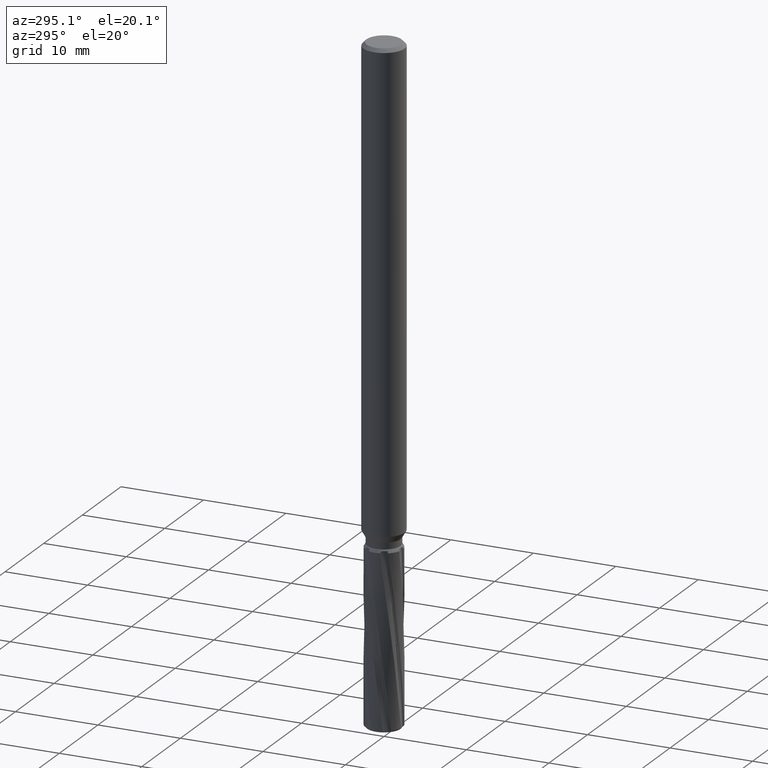
[diagram: clean part render]
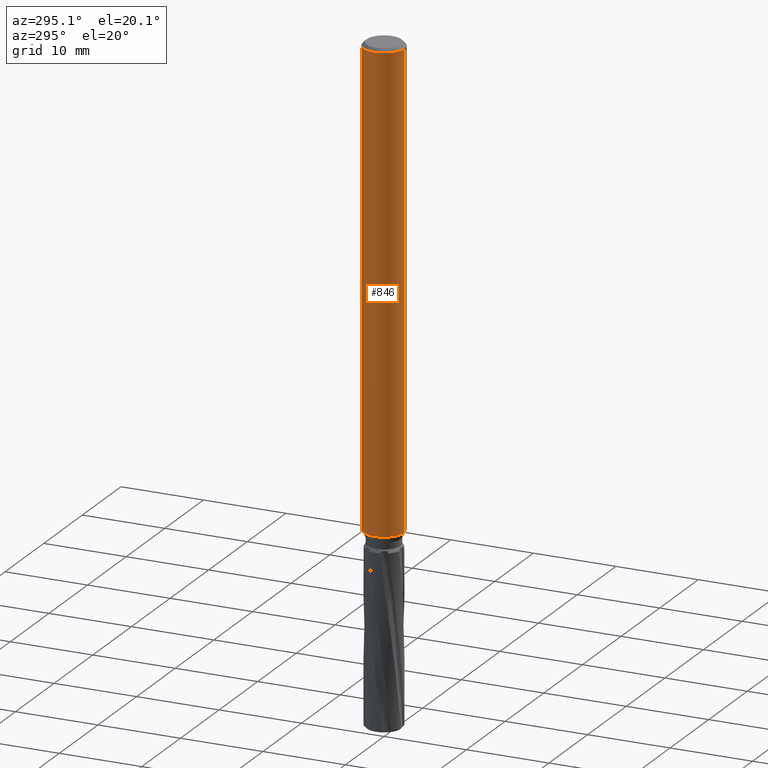
[diagram: same view with one face highlighted and labeled with its STEP entity id]
A machine part, auxiliary view. The second image highlights one B-rep face of the part: STEP entity #846.
In plain terms, the highlighted cylindrical surface (edge-blend (fillet) strip) has radius 2.5 mm, axis along (-0, -0, 1).
Its self-contained STEP definition (entity closure, byte-faithful):
#690=VERTEX_POINT('',#1943);
#846=ADVANCED_FACE('',(#2109),#2110,.T.);
#866=EDGE_CURVE('',#1750,#690,#2131,.T.);
#954=EDGE_CURVE('',#1338,#1298,#2230,.T.);
#1200=EDGE_CURVE('',#690,#1338,#2500,.T.);
#1298=VERTEX_POINT('',#2603);
#1338=VERTEX_POINT('',#2652);
#1686=EDGE_CURVE('',#1750,#1298,#3029,.T.);
#1750=VERTEX_POINT('',#3098);
#1943=CARTESIAN_POINT('',(3.06151588455594E-016,-2.5,-0.399999999999999));
#2109=FACE_OUTER_BOUND('',#4546,.T.);
#2110=CYLINDRICAL_SURFACE('',#4547,2.5);
#2131=LINE('',#4585,#4586);
#2230=LINE('',#5127,#5128);
#2500=CIRCLE('',#7170,2.5);
#2603=CARTESIAN_POINT('',(0.0,2.5,-57.0));
#2652=CARTESIAN_POINT('',(0.0,2.5,-0.399999999999999));
#3029=CIRCLE('',#10210,2.5);
#3098=CARTESIAN_POINT('',(3.06151588455594E-016,-2.5,-57.0));
#4546=EDGE_LOOP('',(#12138,#12139,#12140,#12141));
#4547=AXIS2_PLACEMENT_3D('',#12142,#12143,#12144);
#4585=CARTESIAN_POINT('',(3.06151588455594E-016,-2.5,-28.7));
#4586=VECTOR('',#12159,1.0);
#5127=CARTESIAN_POINT('',(-3.06151588455594E-016,2.5,-28.7));
#5128=VECTOR('',#12299,1.0);
#7170=AXIS2_PLACEMENT_3D('',#12539,#12540,#12541);
#10210=AXIS2_PLACEMENT_3D('',#13048,#13049,#13050);
#12138=ORIENTED_EDGE('',*,*,#954,.T.);
#12139=ORIENTED_EDGE('',*,*,#1686,.F.);
#12140=ORIENTED_EDGE('',*,*,#866,.T.);
#12141=ORIENTED_EDGE('',*,*,#1200,.T.);
#12142=CARTESIAN_POINT('',(0.0,0.0,-28.7));
#12143=DIRECTION('',(-0.0,-0.0,1.0));
#12144=DIRECTION('',(0.0,1.0,0.0));
#12159=DIRECTION('',(-0.0,-0.0,1.0));
#12299=DIRECTION('',(0.0,0.0,-1.0));
#12539=CARTESIAN_POINT('',(0.0,0.0,-0.399999999999999));
#12540=DIRECTION('',(0.0,0.0,-1.0));
#12541=DIRECTION('',(0.0,1.0,0.0));
#13048=CARTESIAN_POINT('',(0.0,0.0,-57.0));
#13049=DIRECTION('',(0.0,0.0,-1.0));
#13050=DIRECTION('',(0.0,1.0,0.0));